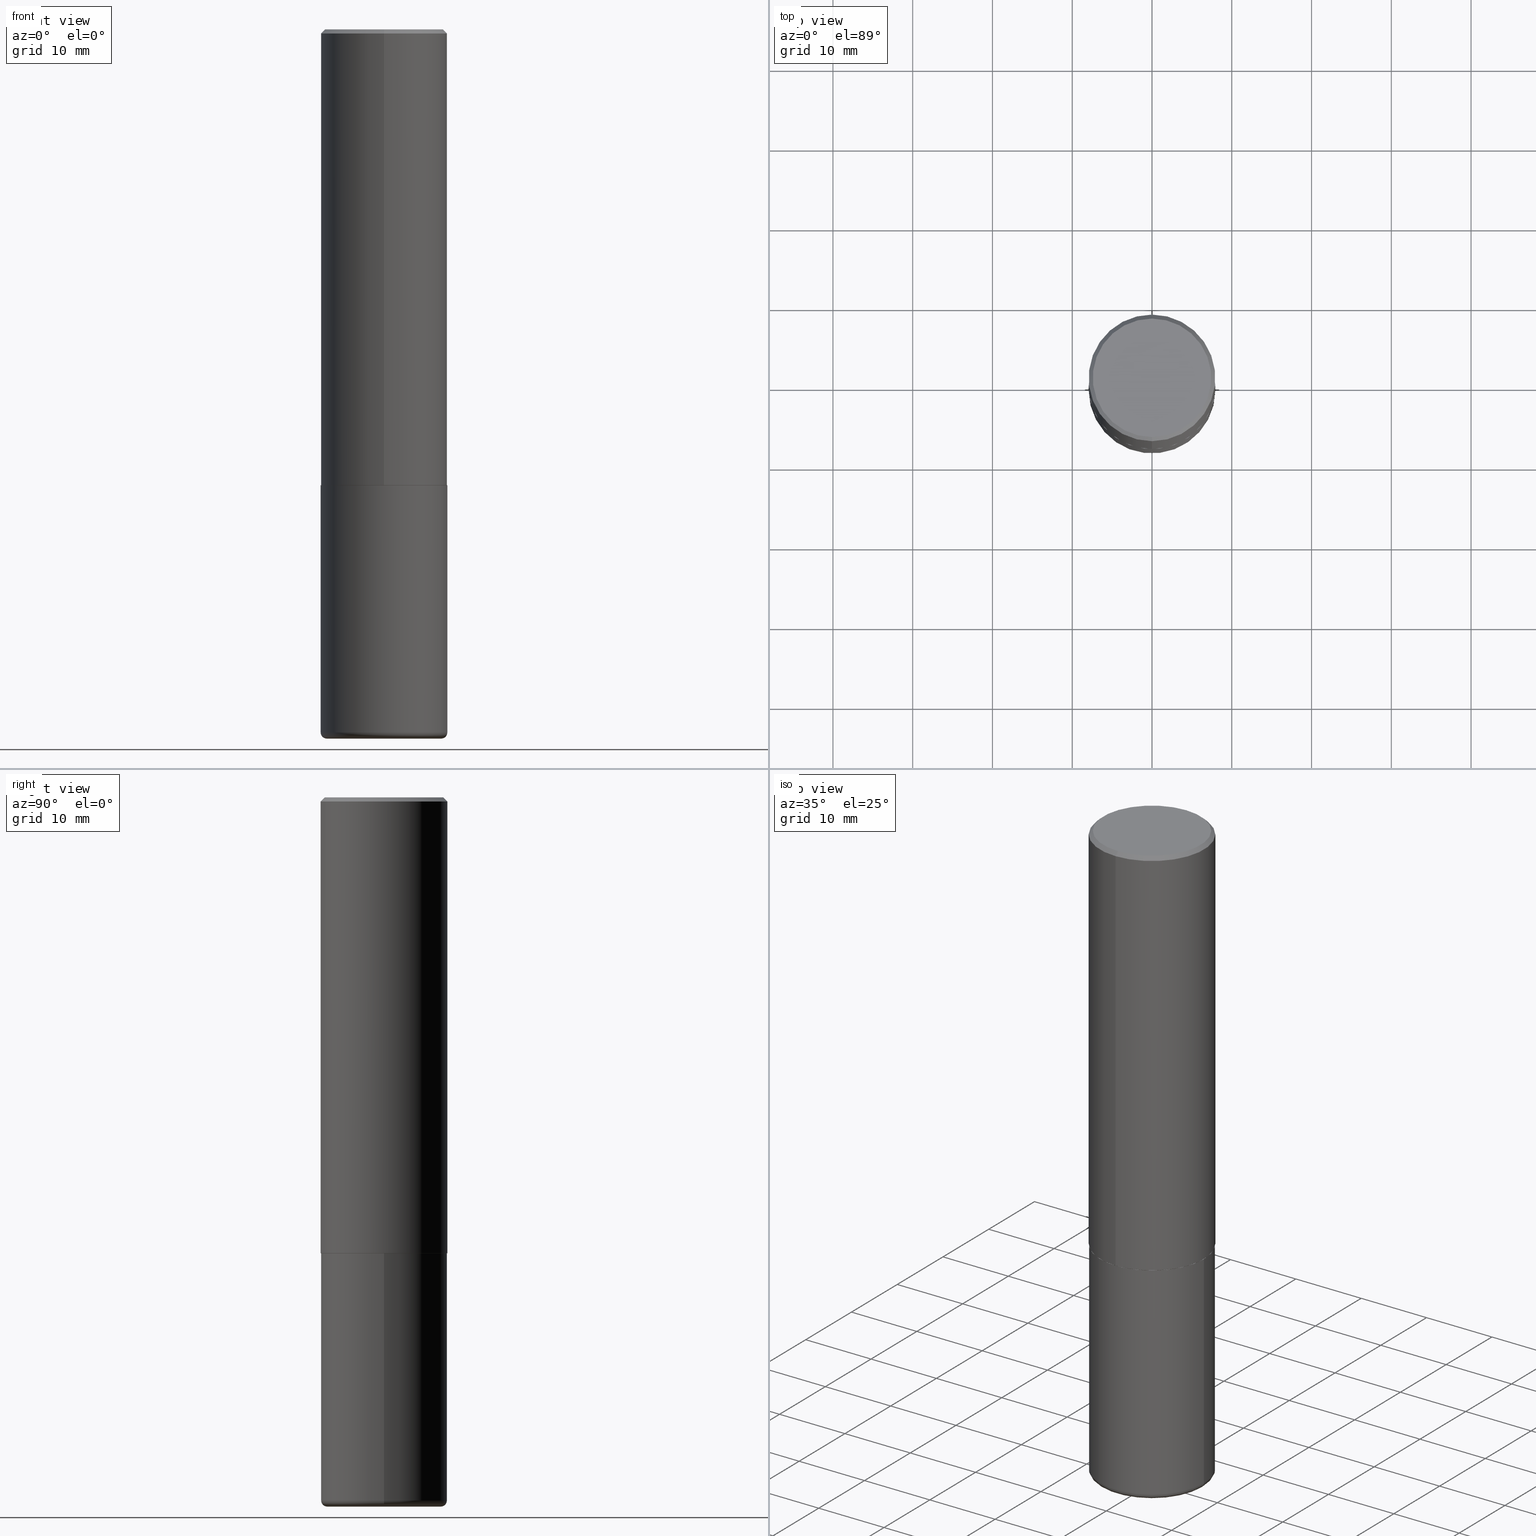
[diagram: canonical four-view strip — front | top / right | iso, engineering-drawing reading convention]
A machine part, canonical four-view strip (front | top / right | iso — engineering-drawing reading convention). The complete STEP part file that produces these views, byte-faithful:
ISO-10303-21;
HEADER;
FILE_DESCRIPTION (( 'STEP AP203' ),
    '1' );
FILE_NAME ('36383.STEP',
    '2024-03-01T16:18:49',
    ( '' ),
    ( '' ),
    'SwSTEP 2.0',
    'SolidWorks 2023',
    '' );
FILE_SCHEMA (( 'CONFIG_CONTROL_DESIGN' ));
ENDSEC;

DATA;
#1 = ADVANCED_FACE ( 'NONE', ( #114 ), #257, .F. ) ;
#2 = DIRECTION ( 'NONE',  ( -4.851104656540957175E-15, -0.7071067811865490160, -0.7071067811865460184 ) ) ;
#3 = DIRECTION ( 'NONE',  ( -2.445086907927291948E-29, 3.492028238884678069E-15, 1.000000000000000000 ) ) ;
#4 = PERSON_AND_ORGANIZATION_ROLE ( 'design_supplier' ) ;
#5 = CARTESIAN_POINT ( 'NONE',  ( 5.499000455928477404E-29, -7.853571509251639273E-15, -2.248999999999999222 ) ) ;
#6 = DIRECTION ( 'NONE',  ( 4.937700262164540942E-15, 0.7071067811865441310, -0.7071067811865509034 ) ) ;
#7 = CARTESIAN_POINT ( 'NONE',  ( -2.143905624303602036E-15, -0.3124999999999999445, -0.01999999999999897693 ) ) ;
#8 = AXIS2_PLACEMENT_3D ( 'NONE', #121, #312, #146 ) ;
#9 = APPROVAL_PERSON_ORGANIZATION ( #78, #305, #399 ) ;
#10 = CARTESIAN_POINT ( 'NONE',  ( 0.3125000000000000000, -1.003800884917403364E-14, -2.249999999999999556 ) ) ;
#11 = PERSON_AND_ORGANIZATION_ROLE ( 'creator' ) ;
#12 = ORIENTED_EDGE ( 'NONE', *, *, #45, .T. ) ;
#13 = COORDINATED_UNIVERSAL_TIME_OFFSET ( 5, 0, .BEHIND. ) ;
#14 = DATE_AND_TIME ( #173, #356 ) ;
#15 = VECTOR ( 'NONE', #159, 39.37007874015748143 ) ;
#16 = AXIS2_PLACEMENT_3D ( 'NONE', #397, #349, #69 ) ;
#17 = ORIENTED_EDGE ( 'NONE', *, *, #77, .T. ) ;
#18 = DIRECTION ( 'NONE',  ( -2.445468806185136877E-29, 3.491481338843145188E-15, 1.000000000000000000 ) ) ;
#19 = VERTEX_POINT ( 'NONE', #301 ) ;
#20 = CIRCLE ( 'NONE', #206, 0.3124999999999999445 ) ;
#21 = CYLINDRICAL_SURFACE ( 'NONE', #249, 0.3125000000000000555 ) ;
#22 = CARTESIAN_POINT ( 'NONE',  ( 2.112346210000094654E-15, 0.2924999999999998157, -9.743046542205149289E-16 ) ) ;
#23 = CC_DESIGN_PERSON_AND_ORGANIZATION_ASSIGNMENT ( #187, #364, ( #296 ) ) ;
#24 = EDGE_LOOP ( 'NONE', ( #262, #384, #61, #17 ) ) ;
#25 = CIRCLE ( 'NONE', #83, 0.2924999999999998157 ) ;
#26 =( NAMED_UNIT ( * ) SI_UNIT ( $, .STERADIAN. ) SOLID_ANGLE_UNIT ( ) );
#27 = ADVANCED_FACE ( 'NONE', ( #82 ), #302, .T. ) ;
#28 = ORIENTED_EDGE ( 'NONE', *, *, #280, .T. ) ;
#29 = COORDINATED_UNIVERSAL_TIME_OFFSET ( 5, 0, .BEHIND. ) ;
#30 = SECURITY_CLASSIFICATION_LEVEL ( 'unclassified' ) ;
#31 = CC_DESIGN_APPROVAL ( #326, ( #96 ) ) ;
#32 = ORIENTED_EDGE ( 'NONE', *, *, #373, .F. ) ;
#33 = CARTESIAN_POINT ( 'NONE',  ( -2.175192874099216718E-15, -0.3115000000000078817, -2.249999999999998224 ) ) ;
#34 = DIRECTION ( 'NONE',  ( 2.438088387897960049E-29, -3.491481338843145188E-15, -1.000000000000000000 ) ) ;
#35 = ORIENTED_EDGE ( 'NONE', *, *, #367, .T. ) ;
#36 = DIRECTION ( 'NONE',  ( -6.982962677686265922E-15, -1.000000000000000000, 3.496765431890253764E-15 ) ) ;
#37 = DATE_TIME_ROLE ( 'classification_date' ) ;
#38 = APPLICATION_PROTOCOL_DEFINITION ( 'international standard', 'config_control_design', 1994, #212 ) ;
#39 = EDGE_CURVE ( 'NONE', #19, #220, #133, .T. ) ;
#40 = LINE ( 'NONE', #371, #242 ) ;
#41 = CARTESIAN_POINT ( 'NONE',  ( 4.890173815854600958E-31, -6.984056477769379656E-17, -0.02000000000000006981 ) ) ;
#42 = ORIENTED_EDGE ( 'NONE', *, *, #144, .T. ) ;
#43 = COORDINATED_UNIVERSAL_TIME_OFFSET ( 5, 0, .BEHIND. ) ;
#44 = CARTESIAN_POINT ( 'NONE',  ( 5.501445542836404712E-29, -7.857063537490523880E-15, -2.249999999999999112 ) ) ;
#45 = EDGE_CURVE ( 'NONE', #64, #58, #108, .T. ) ;
#46 = PERSON_AND_ORGANIZATION ( #62, #191 ) ;
#47 = PLANE ( 'NONE',  #361 ) ;
#48 = CARTESIAN_POINT ( 'NONE',  ( 4.890173815854600958E-31, -6.984056477769379656E-17, -0.02000000000000006981 ) ) ;
#49 = PRODUCT_DEFINITION_SHAPE ( 'NONE', 'NONE',  #318 ) ;
#50 = ORIENTED_EDGE ( 'NONE', *, *, #98, .T. ) ;
#51 = AXIS2_PLACEMENT_3D ( 'NONE', #393, #34, #104 ) ;
#52 = PERSON_AND_ORGANIZATION ( #62, #191 ) ;
#53 = CARTESIAN_POINT ( 'NONE',  ( 8.485776757462424574E-29, -1.211544024578571439E-14, -3.469999999999999751 ) ) ;
#54 = DIRECTION ( 'NONE',  ( 6.982962677686265133E-15, 1.000000000000000000, -3.496765431890258103E-15 ) ) ;
#55 = DIRECTION ( 'NONE',  ( 1.000000000000000000, -6.982962677686270655E-15, 0.000000000000000000 ) ) ;
#56 = CONICAL_SURFACE ( 'NONE', #286, 0.3124999999999998890, 0.7853981633974469467 ) ;
#57 = CARTESIAN_POINT ( 'NONE',  ( 5.502304813916556222E-29, -7.855833012397075293E-15, -2.249999999999999556 ) ) ;
#58 = VERTEX_POINT ( 'NONE', #75 ) ;
#59 = DIRECTION ( 'NONE',  ( -6.982962677686266711E-15, -1.000000000000000000, 3.492028238884678463E-15 ) ) ;
#60 = EDGE_CURVE ( 'NONE', #64, #238, #281, .T. ) ;
#61 = ORIENTED_EDGE ( 'NONE', *, *, #175, .T. ) ;
#62 = PERSON ( 'UNSPECIFIED', 'UNSPECIFIED', 'UNSPECIFIED', ('UNSPECIFIED'), ('UNSPECIFIED'), ('UNSPECIFIED') ) ;
#63 = DIRECTION ( 'NONE',  ( -1.000000000000000000, 7.105427357601001859E-15, 0.000000000000000000 ) ) ;
#64 = VERTEX_POINT ( 'NONE', #79 ) ;
#65 = PERSON_AND_ORGANIZATION ( #62, #191 ) ;
#66 = CIRCLE ( 'NONE', #295, 0.3125000000000002776 ) ;
#67 = TOROIDAL_SURFACE ( 'NONE', #270, 0.2824999999999999734, 0.03000000000000022787 ) ;
#68 = ADVANCED_FACE ( 'NONE', ( #200 ), #56, .T. ) ;
#69 = DIRECTION ( 'NONE',  ( -1.000000000000000000, 6.982962677686265922E-15, -4.876176775795935793E-29 ) ) ;
#70 = SHAPE_DEFINITION_REPRESENTATION ( #49, #398 ) ;
#71 = CARTESIAN_POINT ( 'NONE',  ( 0.2824999999999999734, -1.419287164239738095E-14, -3.500000000000000444 ) ) ;
#72 = CARTESIAN_POINT ( 'NONE',  ( 5.501445542836404712E-29, -7.857063537490523880E-15, -2.249999999999999112 ) ) ;
#73 = CARTESIAN_POINT ( 'NONE',  ( 5.502304813916556222E-29, -7.855833012397075293E-15, -2.249999999999999556 ) ) ;
#74 = VECTOR ( 'NONE', #18, 39.37007874015748143 ) ;
#75 = CARTESIAN_POINT ( 'NONE',  ( 2.182175836776957558E-15, 0.3124999999999998335, -0.02000000000000116268 ) ) ;
#76 = DIRECTION ( 'NONE',  ( -2.445086907927291668E-29, 3.492028238884678463E-15, 1.000000000000000000 ) ) ;
#77 = EDGE_CURVE ( 'NONE', #58, #220, #111, .T. ) ;
#78 = PERSON_AND_ORGANIZATION ( #62, #191 ) ;
#79 = CARTESIAN_POINT ( 'NONE',  ( 2.220446049250341480E-15, 0.3124999999999924505, -2.249000000000000554 ) ) ;
#80 = DIRECTION ( 'NONE',  ( -6.982962677686265133E-15, -1.000000000000000000, 3.496765431890258103E-15 ) ) ;
#81 = CARTESIAN_POINT ( 'NONE',  ( -1.151968603680178869E-45, 1.645220413768359429E-31, 4.711360565325289381E-17 ) ) ;
#82 = FACE_OUTER_BOUND ( 'NONE', #99, .T. ) ;
#83 = AXIS2_PLACEMENT_3D ( 'NONE', #329, #76, #225 ) ;
#84 = CC_DESIGN_PERSON_AND_ORGANIZATION_ASSIGNMENT ( #258, #198, ( #96 ) ) ;
#85 = DIRECTION ( 'NONE',  ( -2.445468806185136877E-29, 3.491481338843145188E-15, 1.000000000000000000 ) ) ;
#86 = ORIENTED_EDGE ( 'NONE', *, *, #418, .T. ) ;
#87 = FACE_OUTER_BOUND ( 'NONE', #377, .T. ) ;
#88 = DIRECTION ( 'NONE',  ( -2.445468806185136597E-29, 3.491481338843145583E-15, 1.000000000000000000 ) ) ;
#89 = AXIS2_PLACEMENT_3D ( 'NONE', #5, #390, #232 ) ;
#90 = AXIS2_PLACEMENT_3D ( 'NONE', #41, #171, #369 ) ;
#91 = ORIENTED_EDGE ( 'NONE', *, *, #60, .F. ) ;
#92 = PERSON_AND_ORGANIZATION ( #62, #191 ) ;
#93 = CARTESIAN_POINT ( 'NONE',  ( -0.2824999999999999734, -1.005394782698206391E-14, -3.500000000000000444 ) ) ;
#94 = EDGE_CURVE ( 'NONE', #119, #410, #190, .T. ) ;
#95 = CIRCLE ( 'NONE', #378, 0.03000000000000022787 ) ;
#96 = SECURITY_CLASSIFICATION ( '', '', #30 ) ;
#97 = VERTEX_POINT ( 'NONE', #134 ) ;
#98 = EDGE_CURVE ( 'NONE', #410, #119, #20, .T. ) ;
#99 = EDGE_LOOP ( 'NONE', ( #339, #136, #303, #352 ) ) ;
#100 = DIRECTION ( 'NONE',  ( 1.000000000000000000, -6.982962677686280121E-15, 0.000000000000000000 ) ) ;
#101 = APPLICATION_PROTOCOL_DEFINITION ( 'international standard', 'config_control_design', 1994, #195 ) ;
#102 = AXIS2_PLACEMENT_3D ( 'NONE', #44, #174, #235 ) ;
#103 = APPROVAL_PERSON_ORGANIZATION ( #46, #326, #330 ) ;
#104 = DIRECTION ( 'NONE',  ( -1.000000000000000000, 6.982962677686265922E-15, -4.876176775795935793E-29 ) ) ;
#105 = ORIENTED_EDGE ( 'NONE', *, *, #182, .F. ) ;
#106 = DIRECTION ( 'NONE',  ( -4.937700262165728178E-15, -0.7071067811867141062, 0.7071067811863809283 ) ) ;
#107 = DATE_AND_TIME ( #386, #219 ) ;
#108 = LINE ( 'NONE', #227, #139 ) ;
#109 = DIRECTION ( 'NONE',  ( -2.445468806185136597E-29, 3.491481338843145583E-15, 1.000000000000000000 ) ) ;
#110 = EDGE_CURVE ( 'NONE', #97, #238, #395, .T. ) ;
#111 = CIRCLE ( 'NONE', #8, 0.3124999999999998890 ) ;
#112 = CARTESIAN_POINT ( 'NONE',  ( 4.890173815854600958E-31, -6.984056477769379656E-17, -0.02000000000000006981 ) ) ;
#113 = EDGE_CURVE ( 'NONE', #19, #252, #25, .T. ) ;
#114 = FACE_OUTER_BOUND ( 'NONE', #226, .T. ) ;
#115 = APPROVAL_DATE_TIME ( #178, #234 ) ;
#116 = AXIS2_PLACEMENT_3D ( 'NONE', #57, #124, #183 ) ;
#117 = ORIENTED_EDGE ( 'NONE', *, *, #135, .F. ) ;
#118 = CARTESIAN_POINT ( 'NONE',  ( 0.3125000000000000000, -2.182175836776958347E-15, 1.523805242436230075E-29 ) ) ;
#119 = VERTEX_POINT ( 'NONE', #229 ) ;
#120 = ADVANCED_FACE ( 'NONE', ( #164 ), #308, .T. ) ;
#121 = CARTESIAN_POINT ( 'NONE',  ( 4.890173815854600958E-31, -6.984056477769379656E-17, -0.02000000000000006981 ) ) ;
#122 = VECTOR ( 'NONE', #6, 39.37007874015748143 ) ;
#123 = AXIS2_PLACEMENT_3D ( 'NONE', #388, #109, #228 ) ;
#124 = DIRECTION ( 'NONE',  ( -2.445468806185136597E-29, 3.491481338843145583E-15, 1.000000000000000000 ) ) ;
#125 = LINE ( 'NONE', #118, #74 ) ;
#126 = EDGE_LOOP ( 'NONE', ( #294, #337, #244, #266 ) ) ;
#127 = DESIGN_CONTEXT ( 'detailed design', #212, 'design' ) ;
#128 = ADVANCED_FACE ( 'NONE', ( #359 ), #391, .T. ) ;
#129 = FACE_OUTER_BOUND ( 'NONE', #370, .T. ) ;
#130 = AXIS2_PLACEMENT_3D ( 'NONE', #194, #313, #63 ) ;
#131 = APPROVAL_DATE_TIME ( #396, #326 ) ;
#132 = AXIS2_PLACEMENT_3D ( 'NONE', #263, #88, #55 ) ;
#133 = LINE ( 'NONE', #7, #151 ) ;
#134 = CARTESIAN_POINT ( 'NONE',  ( -2.175192874099216718E-15, -0.3115000000000078817, -2.249999999999998224 ) ) ;
#135 = EDGE_CURVE ( 'NONE', #220, #58, #213, .T. ) ;
#136 = ORIENTED_EDGE ( 'NONE', *, *, #254, .T. ) ;
#137 = CARTESIAN_POINT ( 'NONE',  ( 0.000000000000000000, 0.000000000000000000, 0.000000000000000000 ) ) ;
#138 = DIRECTION ( 'NONE',  ( -6.982962677686266711E-15, -1.000000000000000000, 3.492028238884678463E-15 ) ) ;
#139 = VECTOR ( 'NONE', #360, 39.37007874015748143 ) ;
#140 = CIRCLE ( 'NONE', #376, 0.3125000000000000000 ) ;
#141 = CARTESIAN_POINT ( 'NONE',  ( 5.501445542836404712E-29, -7.857063537490523880E-15, -2.249999999999999112 ) ) ;
#142 = DIRECTION ( 'NONE',  ( -2.445468806185136597E-29, 3.491481338843145583E-15, 1.000000000000000000 ) ) ;
#143 = FACE_OUTER_BOUND ( 'NONE', #350, .T. ) ;
#144 = EDGE_CURVE ( 'NONE', #119, #274, #40, .T. ) ;
#145 = PERSON_AND_ORGANIZATION ( #62, #191 ) ;
#146 = DIRECTION ( 'NONE',  ( -6.982962677686265133E-15, -1.000000000000000000, 3.496765431890258103E-15 ) ) ;
#147 = ORIENTED_EDGE ( 'NONE', *, *, #182, .T. ) ;
#148 = DIRECTION ( 'NONE',  ( -2.445468806185136597E-29, 3.491481338843145583E-15, 1.000000000000000000 ) ) ;
#149 = ORIENTED_EDGE ( 'NONE', *, *, #60, .T. ) ;
#150 = DIRECTION ( 'NONE',  ( 2.445086907927291668E-29, -3.492028238884678069E-15, -1.000000000000000000 ) ) ;
#151 = VECTOR ( 'NONE', #2, 39.37007874015748143 ) ;
#152 = EDGE_CURVE ( 'NONE', #238, #220, #205, .T. ) ;
#153 = EDGE_LOOP ( 'NONE', ( #50, #42, #291, #207 ) ) ;
#154 = CARTESIAN_POINT ( 'NONE',  ( 2.042516583223231356E-15, 0.2924999999999998157, -9.978614570471413234E-16 ) ) ;
#155 = DIRECTION ( 'NONE',  ( -2.445468806185136597E-29, 3.491481338843145583E-15, 1.000000000000000000 ) ) ;
#156 =( GEOMETRIC_REPRESENTATION_CONTEXT ( 3 ) GLOBAL_UNCERTAINTY_ASSIGNED_CONTEXT ( ( #354 ) ) GLOBAL_UNIT_ASSIGNED_CONTEXT ( ( #163, #285, #26 ) ) REPRESENTATION_CONTEXT ( 'NONE', 'WORKASPACE' ) );
#157 = CC_DESIGN_PERSON_AND_ORGANIZATION_ASSIGNMENT ( #65, #11, ( #167 ) ) ;
#158 = CARTESIAN_POINT ( 'NONE',  ( 8.559140821647978089E-29, -1.222018468595101092E-14, -3.500000000000000444 ) ) ;
#159 = DIRECTION ( 'NONE',  ( 5.024295867789263036E-15, 0.7071067811867189912, 0.7071067811863760433 ) ) ;
#160 = AXIS2_PLACEMENT_3D ( 'NONE', #201, #142, #334 ) ;
#161 = DIRECTION ( 'NONE',  ( -2.445086907927291668E-29, 3.492028238884678463E-15, 1.000000000000000000 ) ) ;
#162 = LOCAL_TIME ( 11, 18, 49.00000000000000000, #29 ) ;
#163 =( CONVERSION_BASED_UNIT ( 'INCH', #253 ) LENGTH_UNIT ( ) NAMED_UNIT ( #368 ) );
#164 = FACE_OUTER_BOUND ( 'NONE', #332, .T. ) ;
#165 = CARTESIAN_POINT ( 'NONE',  ( 2.216893335571567797E-15, 0.3114999999999921720, -2.250000000000000444 ) ) ;
#166 = CIRCLE ( 'NONE', #116, 0.3125000000000000000 ) ;
#167 = PRODUCT_DEFINITION_FORMATION_WITH_SPECIFIED_SOURCE ( 'ANY', '', #296, .NOT_KNOWN. ) ;
#168 = CARTESIAN_POINT ( 'NONE',  ( -2.182175836776958741E-15, -0.3125000000000000555, 1.091258824651462242E-15 ) ) ;
#169 = MANIFOLD_SOLID_BREP ( 'Body-Move/Copy2[1]', #214 ) ;
#170 = EDGE_CURVE ( 'NONE', #238, #64, #66, .T. ) ;
#171 = DIRECTION ( 'NONE',  ( 2.445086907927291668E-29, -3.492028238884678463E-15, -1.000000000000000000 ) ) ;
#172 = CIRCLE ( 'NONE', #411, 0.2824999999999999734 ) ;
#173 = CALENDAR_DATE ( 2024, 1, 3 ) ;
#174 = DIRECTION ( 'NONE',  ( -2.445086907927291668E-29, 3.492028238884678463E-15, 1.000000000000000000 ) ) ;
#175 = EDGE_CURVE ( 'NONE', #252, #58, #389, .T. ) ;
#176 = CONICAL_SURFACE ( 'NONE', #90, 0.3124999999999998890, 0.7853981633974469467 ) ;
#177 = MANIFOLD_SOLID_BREP ( 'Body-Move/Copy2[2]', #230 ) ;
#178 = DATE_AND_TIME ( #402, #282 ) ;
#179 = DIRECTION ( 'NONE',  ( -2.445468806185136597E-29, 3.491481338843145583E-15, 1.000000000000000000 ) ) ;
#180 = CYLINDRICAL_SURFACE ( 'NONE', #372, 0.3125000000000000000 ) ;
#181 = PERSON_AND_ORGANIZATION_ROLE ( 'creator' ) ;
#182 = EDGE_CURVE ( 'NONE', #321, #246, #347, .T. ) ;
#183 = DIRECTION ( 'NONE',  ( 1.000000000000000000, -6.982962677686265133E-15, 0.000000000000000000 ) ) ;
#184 = DIRECTION ( 'NONE',  ( -2.445086907927291668E-29, 3.492028238884678463E-15, 1.000000000000000000 ) ) ;
#185 = DIRECTION ( 'NONE',  ( -6.982962677686265922E-15, -1.000000000000000000, 3.507991003100177457E-15 ) ) ;
#186 = CARTESIAN_POINT ( 'NONE',  ( -0.3125000000000000000, -7.765190579841083341E-15, -2.249999999999999556 ) ) ;
#187 = PERSON_AND_ORGANIZATION ( #62, #191 ) ;
#188 = ORIENTED_EDGE ( 'NONE', *, *, #275, .F. ) ;
#189 = ADVANCED_FACE ( 'NONE', ( #245 ), #180, .T. ) ;
#190 = CIRCLE ( 'NONE', #160, 0.3124999999999999445 ) ;
#191 = ORGANIZATION ( 'UNSPECIFIED', 'UNSPECIFIED', '' ) ;
#192 = ORIENTED_EDGE ( 'NONE', *, *, #254, .F. ) ;
#193 = DIRECTION ( 'NONE',  ( -6.982962677686266711E-15, -1.000000000000000000, 3.491481338843145583E-15 ) ) ;
#194 = CARTESIAN_POINT ( 'NONE',  ( -0.2824999999999999734, -1.010815701726343156E-14, -3.469999999999999751 ) ) ;
#195 = APPLICATION_CONTEXT ( 'configuration controlled 3d designs of mechanical parts and assemblies' ) ;
#196 = DIRECTION ( 'NONE',  ( -2.445086907927291668E-29, 3.492028238884678463E-15, 1.000000000000000000 ) ) ;
#197 = CIRCLE ( 'NONE', #264, 0.3114999999999999991 ) ;
#198 = PERSON_AND_ORGANIZATION_ROLE ( 'classification_officer' ) ;
#199 = APPROVAL_STATUS ( 'not_yet_approved' ) ;
#200 = FACE_OUTER_BOUND ( 'NONE', #24, .T. ) ;
#201 = CARTESIAN_POINT ( 'NONE',  ( 8.485776757462424574E-29, -1.211544024578571439E-14, -3.469999999999999751 ) ) ;
#202 = FACE_OUTER_BOUND ( 'NONE', #126, .T. ) ;
#203 = ORIENTED_EDGE ( 'NONE', *, *, #210, .F. ) ;
#204 = ORIENTED_EDGE ( 'NONE', *, *, #77, .F. ) ;
#205 = LINE ( 'NONE', #168, #269 ) ;
#206 = AXIS2_PLACEMENT_3D ( 'NONE', #365, #385, #324 ) ;
#207 = ORIENTED_EDGE ( 'NONE', *, *, #418, .F. ) ;
#208 = CARTESIAN_POINT ( 'NONE',  ( 5.499000455928477404E-29, -7.853571509251639273E-15, -2.248999999999999222 ) ) ;
#209 = DIRECTION ( 'NONE',  ( 1.000000000000000000, -6.982962677686265133E-15, 0.000000000000000000 ) ) ;
#210 = EDGE_CURVE ( 'NONE', #246, #321, #172, .T. ) ;
#211 = ORIENTED_EDGE ( 'NONE', *, *, #152, .F. ) ;
#212 = APPLICATION_CONTEXT ( 'configuration controlled 3d designs of mechanical parts and assemblies' ) ;
#213 = CIRCLE ( 'NONE', #375, 0.3124999999999998890 ) ;
#214 = CLOSED_SHELL ( 'NONE', ( #189, #394, #355, #358, #120, #284 ) ) ;
#215 = CC_DESIGN_SECURITY_CLASSIFICATION ( #96, ( #167 ) ) ;
#216 = EDGE_CURVE ( 'NONE', #341, #274, #166, .T. ) ;
#217 = CALENDAR_DATE ( 2024, 1, 3 ) ;
#218 = CARTESIAN_POINT ( 'NONE',  ( 0.000000000000000000, 0.000000000000000000, 0.000000000000000000 ) ) ;
#219 = LOCAL_TIME ( 11, 18, 49.00000000000000000, #328 ) ;
#220 = VERTEX_POINT ( 'NONE', #344 ) ;
#221 = CC_DESIGN_DATE_AND_TIME_ASSIGNMENT ( #107, #37, ( #96 ) ) ;
#222 = CIRCLE ( 'NONE', #403, 0.3114999999999999991 ) ;
#223 = ORIENTED_EDGE ( 'NONE', *, *, #45, .F. ) ;
#224 = CC_DESIGN_PERSON_AND_ORGANIZATION_ASSIGNMENT ( #145, #4, ( #167 ) ) ;
#225 = DIRECTION ( 'NONE',  ( -6.982962677686265133E-15, -1.000000000000000000, 3.492028238884678858E-15 ) ) ;
#226 = EDGE_LOOP ( 'NONE', ( #240, #188 ) ) ;
#227 = CARTESIAN_POINT ( 'NONE',  ( 2.220446049250313081E-15, 0.3125000000000000555, -1.091258824651462242E-15 ) ) ;
#228 = DIRECTION ( 'NONE',  ( 1.000000000000000000, -6.982962677686266711E-15, 4.876176775795936353E-29 ) ) ;
#229 = CARTESIAN_POINT ( 'NONE',  ( -0.3125000000000000555, -9.894994196535401314E-15, -3.469999999999999751 ) ) ;
#230 = CLOSED_SHELL ( 'NONE', ( #27, #251, #333, #68, #292, #128, #1, #382 ) ) ;
#231 = CC_DESIGN_APPROVAL ( #305, ( #318 ) ) ;
#232 = DIRECTION ( 'NONE',  ( -6.982962677686265922E-15, -1.000000000000000000, 3.496765431890253764E-15 ) ) ;
#233 = FACE_OUTER_BOUND ( 'NONE', #405, .T. ) ;
#234 = APPROVAL ( #342, 'UNSPECIFIED' ) ;
#235 = DIRECTION ( 'NONE',  ( -6.982962677686265922E-15, -1.000000000000000000, 3.507991003100177457E-15 ) ) ;
#236 = DIRECTION ( 'NONE',  ( -2.445086907927291668E-29, 3.492028238884678463E-15, 1.000000000000000000 ) ) ;
#237 = DIRECTION ( 'NONE',  ( -6.982962677686265922E-15, -1.000000000000000000, 3.492028238884678069E-15 ) ) ;
#238 = VERTEX_POINT ( 'NONE', #278 ) ;
#239 = EDGE_LOOP ( 'NONE', ( #387, #12, #117, #211 ) ) ;
#240 = ORIENTED_EDGE ( 'NONE', *, *, #241, .F. ) ;
#241 = EDGE_CURVE ( 'NONE', #97, #338, #222, .T. ) ;
#242 = VECTOR ( 'NONE', #85, 39.37007874015748143 ) ;
#243 = APPROVAL_PERSON_ORGANIZATION ( #52, #234, #299 ) ;
#244 = ORIENTED_EDGE ( 'NONE', *, *, #135, .T. ) ;
#245 = FACE_OUTER_BOUND ( 'NONE', #153, .T. ) ;
#246 = VERTEX_POINT ( 'NONE', #93 ) ;
#247 = DIRECTION ( 'NONE',  ( -6.982962677686265922E-15, -1.000000000000000000, 3.507991003100177457E-15 ) ) ;
#248 = EDGE_LOOP ( 'NONE', ( #105, #203 ) ) ;
#249 = AXIS2_PLACEMENT_3D ( 'NONE', #383, #351, #59 ) ;
#250 = AXIS2_PLACEMENT_3D ( 'NONE', #310, #279, #314 ) ;
#251 = ADVANCED_FACE ( 'NONE', ( #309 ), #21, .T. ) ;
#252 = VERTEX_POINT ( 'NONE', #22 ) ;
#253 = LENGTH_MEASURE_WITH_UNIT ( LENGTH_MEASURE( 0.02539999999999999897 ), #256 );
#254 = EDGE_CURVE ( 'NONE', #338, #64, #416, .T. ) ;
#255 = VECTOR ( 'NONE', #106, 39.37007874015748143 ) ;
#256 =( LENGTH_UNIT ( ) NAMED_UNIT ( * ) SI_UNIT ( $, .METRE. ) );
#257 = PLANE ( 'NONE',  #335 ) ;
#258 = PERSON_AND_ORGANIZATION ( #62, #191 ) ;
#259 = ORIENTED_EDGE ( 'NONE', *, *, #110, .T. ) ;
#260 = DIRECTION ( 'NONE',  ( -2.445086907927291668E-29, 3.492028238884678463E-15, 1.000000000000000000 ) ) ;
#261 = DIRECTION ( 'NONE',  ( -2.445086907927291668E-29, 3.492028238884678463E-15, 1.000000000000000000 ) ) ;
#262 = ORIENTED_EDGE ( 'NONE', *, *, #39, .F. ) ;
#263 = CARTESIAN_POINT ( 'NONE',  ( 8.559140821647978089E-29, -1.222018468595101092E-14, -3.500000000000000444 ) ) ;
#264 = AXIS2_PLACEMENT_3D ( 'NONE', #379, #161, #185 ) ;
#265 = PLANE ( 'NONE',  #16 ) ;
#266 = ORIENTED_EDGE ( 'NONE', *, *, #175, .F. ) ;
#267 = EDGE_CURVE ( 'NONE', #321, #410, #95, .T. ) ;
#268 = DIRECTION ( 'NONE',  ( -2.445086907927291668E-29, 3.492028238884678463E-15, 1.000000000000000000 ) ) ;
#269 = VECTOR ( 'NONE', #3, 39.37007874015748143 ) ;
#270 = AXIS2_PLACEMENT_3D ( 'NONE', #53, #179, #304 ) ;
#271 = APPROVAL_DATE_TIME ( #14, #305 ) ;
#272 = DIRECTION ( 'NONE',  ( 2.445086907927291668E-29, -3.492028238884678463E-15, -1.000000000000000000 ) ) ;
#273 = EDGE_LOOP ( 'NONE', ( #35, #408 ) ) ;
#274 = VERTEX_POINT ( 'NONE', #186 ) ;
#275 = EDGE_CURVE ( 'NONE', #338, #97, #197, .T. ) ;
#276 = ORIENTED_EDGE ( 'NONE', *, *, #373, .T. ) ;
#277 = DIRECTION ( 'NONE',  ( 1.000000000000000000, -6.982962677686266711E-15, 4.876176775795936353E-29 ) ) ;
#278 = CARTESIAN_POINT ( 'NONE',  ( -2.182175836776905099E-15, -0.3125000000000081601, -2.248999999999998334 ) ) ;
#279 = DIRECTION ( 'NONE',  ( 0.000000000000000000, 0.000000000000000000, 1.000000000000000000 ) ) ;
#280 = EDGE_CURVE ( 'NONE', #246, #119, #348, .T. ) ;
#281 = CIRCLE ( 'NONE', #89, 0.3125000000000002776 ) ;
#282 = LOCAL_TIME ( 11, 18, 49.00000000000000000, #13 ) ;
#283 = ORIENTED_EDGE ( 'NONE', *, *, #216, .T. ) ;
#284 = ADVANCED_FACE ( 'NONE', ( #315 ), #325, .T. ) ;
#285 =( NAMED_UNIT ( * ) PLANE_ANGLE_UNIT ( ) SI_UNIT ( $, .RADIAN. ) );
#286 = AXIS2_PLACEMENT_3D ( 'NONE', #48, #272, #54 ) ;
#287 = DIRECTION ( 'NONE',  ( -6.982962677686265133E-15, -1.000000000000000000, 3.492028238884678858E-15 ) ) ;
#288 = ORIENTED_EDGE ( 'NONE', *, *, #144, .F. ) ;
#289 = DIRECTION ( 'NONE',  ( 1.000000000000000000, -6.982962677686264344E-15, 4.883557194083112340E-29 ) ) ;
#290 = APPROVAL_STATUS ( 'not_yet_approved' ) ;
#291 = ORIENTED_EDGE ( 'NONE', *, *, #216, .F. ) ;
#292 = ADVANCED_FACE ( 'NONE', ( #233 ), #331, .T. ) ;
#293 = CARTESIAN_POINT ( 'NONE',  ( 2.182175836776957558E-15, 0.3124999999999998335, -0.02000000000000116268 ) ) ;
#294 = ORIENTED_EDGE ( 'NONE', *, *, #113, .F. ) ;
#295 = AXIS2_PLACEMENT_3D ( 'NONE', #208, #260, #36 ) ;
#296 = PRODUCT ( '36383', '36383', '', ( #380 ) ) ;
#297 = DIRECTION ( 'NONE',  ( -6.982962677686265922E-15, -1.000000000000000000, 3.507991003100177457E-15 ) ) ;
#298 = CC_DESIGN_DATE_AND_TIME_ASSIGNMENT ( #345, #374, ( #318 ) ) ;
#299 = APPROVAL_ROLE ( '' ) ;
#300 = CYLINDRICAL_SURFACE ( 'NONE', #123, 0.3125000000000000000 ) ;
#301 = CARTESIAN_POINT ( 'NONE',  ( -2.075300644325886704E-15, -0.2924999999999998157, 1.068531865527020507E-15 ) ) ;
#302 = CONICAL_SURFACE ( 'NONE', #102, 0.3114999999999999991, 0.7853981633976873100 ) ;
#303 = ORIENTED_EDGE ( 'NONE', *, *, #170, .F. ) ;
#304 = DIRECTION ( 'NONE',  ( 1.000000000000000000, -6.982962677686264344E-15, 4.883557194083112340E-29 ) ) ;
#305 = APPROVAL ( #199, 'UNSPECIFIED' ) ;
#306 = ORIENTED_EDGE ( 'NONE', *, *, #275, .T. ) ;
#307 = COORDINATED_UNIVERSAL_TIME_OFFSET ( 5, 0, .BEHIND. ) ;
#308 = TOROIDAL_SURFACE ( 'NONE', #392, 0.2824999999999999734, 0.03000000000000022787 ) ;
#309 = FACE_OUTER_BOUND ( 'NONE', #239, .T. ) ;
#310 = CARTESIAN_POINT ( 'NONE',  ( 0.000000000000000000, 0.000000000000000000, 0.000000000000000000 ) ) ;
#311 = PRODUCT_RELATED_PRODUCT_CATEGORY ( 'detail', '', ( #296 ) ) ;
#312 = DIRECTION ( 'NONE',  ( -2.445086907927291668E-29, 3.492028238884678463E-15, 1.000000000000000000 ) ) ;
#313 = DIRECTION ( 'NONE',  ( 7.105427357601001859E-15, 1.000000000000000000, -3.491481338843145583E-15 ) ) ;
#314 = DIRECTION ( 'NONE',  ( 1.000000000000000000, 0.000000000000000000, 0.000000000000000000 ) ) ;
#315 = FACE_OUTER_BOUND ( 'NONE', #248, .T. ) ;
#316 = AXIS2_PLACEMENT_3D ( 'NONE', #72, #196, #297 ) ;
#317 = CIRCLE ( 'NONE', #404, 0.2924999999999998157 ) ;
#318 = PRODUCT_DEFINITION ( 'UNKNOWN', '', #167, #127 ) ;
#319 = ORIENTED_EDGE ( 'NONE', *, *, #94, .T. ) ;
#320 = CARTESIAN_POINT ( 'NONE',  ( 0.2824999999999999734, -1.408812720223208600E-14, -3.469999999999999751 ) ) ;
#321 = VERTEX_POINT ( 'NONE', #71 ) ;
#322 = ORIENTED_EDGE ( 'NONE', *, *, #98, .F. ) ;
#323 = LOCAL_TIME ( 11, 18, 49.00000000000000000, #307 ) ;
#324 = DIRECTION ( 'NONE',  ( 1.000000000000000000, -6.982962677686264344E-15, 0.000000000000000000 ) ) ;
#325 = PLANE ( 'NONE',  #51 ) ;
#326 = APPROVAL ( #290, 'UNSPECIFIED' ) ;
#327 = DIRECTION ( 'NONE',  ( -2.445086907927291668E-29, 3.492028238884678069E-15, 1.000000000000000000 ) ) ;
#328 = COORDINATED_UNIVERSAL_TIME_OFFSET ( 5, 0, .BEHIND. ) ;
#329 = CARTESIAN_POINT ( 'NONE',  ( -1.151968603680178869E-45, 1.645220413768359429E-31, 4.711360565325289381E-17 ) ) ;
#330 = APPROVAL_ROLE ( '' ) ;
#331 = CYLINDRICAL_SURFACE ( 'NONE', #336, 0.3125000000000000555 ) ;
#332 = EDGE_LOOP ( 'NONE', ( #415, #353, #401, #417 ) ) ;
#333 = ADVANCED_FACE ( 'NONE', ( #202 ), #176, .T. ) ;
#334 = DIRECTION ( 'NONE',  ( 1.000000000000000000, -6.982962677686264344E-15, 0.000000000000000000 ) ) ;
#335 = AXIS2_PLACEMENT_3D ( 'NONE', #141, #327, #237 ) ;
#336 = AXIS2_PLACEMENT_3D ( 'NONE', #137, #261, #138 ) ;
#337 = ORIENTED_EDGE ( 'NONE', *, *, #39, .T. ) ;
#338 = VERTEX_POINT ( 'NONE', #165 ) ;
#339 = ORIENTED_EDGE ( 'NONE', *, *, #241, .T. ) ;
#340 = FACE_OUTER_BOUND ( 'NONE', #273, .T. ) ;
#341 = VERTEX_POINT ( 'NONE', #10 ) ;
#342 = APPROVAL_STATUS ( 'not_yet_approved' ) ;
#343 = CC_DESIGN_APPROVAL ( #234, ( #167 ) ) ;
#344 = CARTESIAN_POINT ( 'NONE',  ( -2.143905624303602036E-15, -0.3124999999999999445, -0.01999999999999897693 ) ) ;
#345 = DATE_AND_TIME ( #217, #323 ) ;
#346 = DIRECTION ( 'NONE',  ( -2.445468806185136597E-29, 3.491481338843145583E-15, 1.000000000000000000 ) ) ;
#347 = CIRCLE ( 'NONE', #132, 0.2824999999999999734 ) ;
#348 = CIRCLE ( 'NONE', #130, 0.03000000000000022787 ) ;
#349 = DIRECTION ( 'NONE',  ( 2.438088387897960049E-29, -3.491481338843145188E-15, -1.000000000000000000 ) ) ;
#350 = EDGE_LOOP ( 'NONE', ( #283, #276 ) ) ;
#351 = DIRECTION ( 'NONE',  ( -2.445086907927291668E-29, 3.492028238884678463E-15, 1.000000000000000000 ) ) ;
#352 = ORIENTED_EDGE ( 'NONE', *, *, #110, .F. ) ;
#353 = ORIENTED_EDGE ( 'NONE', *, *, #210, .T. ) ;
#354 = UNCERTAINTY_MEASURE_WITH_UNIT (LENGTH_MEASURE( 1.000000000000000082E-05 ), #163, 'distance_accuracy_value', 'NONE');
#355 = ADVANCED_FACE ( 'NONE', ( #143 ), #265, .F. ) ;
#356 = LOCAL_TIME ( 11, 18, 49.00000000000000000, #43 ) ;
#357 = EDGE_LOOP ( 'NONE', ( #192, #306, #259, #91 ) ) ;
#358 = ADVANCED_FACE ( 'NONE', ( #129 ), #300, .T. ) ;
#359 = FACE_OUTER_BOUND ( 'NONE', #357, .T. ) ;
#360 = DIRECTION ( 'NONE',  ( -2.445086907927291948E-29, 3.492028238884678069E-15, 1.000000000000000000 ) ) ;
#361 = AXIS2_PLACEMENT_3D ( 'NONE', #154, #150, #406 ) ;
#362 = ORIENTED_EDGE ( 'NONE', *, *, #267, .F. ) ;
#363 = CARTESIAN_POINT ( 'NONE',  ( 8.485776757462424574E-29, -1.211544024578571439E-14, -3.469999999999999751 ) ) ;
#364 = PERSON_AND_ORGANIZATION_ROLE ( 'design_owner' ) ;
#365 = CARTESIAN_POINT ( 'NONE',  ( 8.485776757462424574E-29, -1.211544024578571439E-14, -3.469999999999999751 ) ) ;
#366 = CALENDAR_DATE ( 2024, 1, 3 ) ;
#367 = EDGE_CURVE ( 'NONE', #252, #19, #317, .T. ) ;
#368 = DIMENSIONAL_EXPONENTS ( 1.000000000000000000, 0.000000000000000000, 0.000000000000000000, 0.000000000000000000, 0.000000000000000000, 0.000000000000000000, 0.000000000000000000 ) ;
#369 = DIRECTION ( 'NONE',  ( 6.982962677686265133E-15, 1.000000000000000000, -3.496765431890258103E-15 ) ) ;
#370 = EDGE_LOOP ( 'NONE', ( #288, #319, #86, #32 ) ) ;
#371 = CARTESIAN_POINT ( 'NONE',  ( -0.3125000000000000000, 2.220446049250313081E-15, -1.537167215704658232E-29 ) ) ;
#372 = AXIS2_PLACEMENT_3D ( 'NONE', #218, #155, #277 ) ;
#373 = EDGE_CURVE ( 'NONE', #274, #341, #140, .T. ) ;
#374 = DATE_TIME_ROLE ( 'creation_date' ) ;
#375 = AXIS2_PLACEMENT_3D ( 'NONE', #112, #236, #80 ) ;
#376 = AXIS2_PLACEMENT_3D ( 'NONE', #73, #413, #209 ) ;
#377 = EDGE_LOOP ( 'NONE', ( #147, #28, #322, #362 ) ) ;
#378 = AXIS2_PLACEMENT_3D ( 'NONE', #320, #193, #100 ) ;
#379 = CARTESIAN_POINT ( 'NONE',  ( 5.501445542836404712E-29, -7.857063537490523880E-15, -2.249999999999999112 ) ) ;
#380 = MECHANICAL_CONTEXT ( 'NONE', #195, 'mechanical' ) ;
#381 = CARTESIAN_POINT ( 'NONE',  ( 2.213340621892766504E-15, 0.3114999999999921720, -2.250000000000000444 ) ) ;
#382 = ADVANCED_FACE ( 'NONE', ( #340 ), #47, .F. ) ;
#383 = CARTESIAN_POINT ( 'NONE',  ( 0.000000000000000000, 0.000000000000000000, 0.000000000000000000 ) ) ;
#384 = ORIENTED_EDGE ( 'NONE', *, *, #367, .F. ) ;
#385 = DIRECTION ( 'NONE',  ( -2.445468806185136597E-29, 3.491481338843145583E-15, 1.000000000000000000 ) ) ;
#386 = CALENDAR_DATE ( 2024, 1, 3 ) ;
#387 = ORIENTED_EDGE ( 'NONE', *, *, #170, .T. ) ;
#388 = CARTESIAN_POINT ( 'NONE',  ( 0.000000000000000000, 0.000000000000000000, 0.000000000000000000 ) ) ;
#389 = LINE ( 'NONE', #293, #122 ) ;
#390 = DIRECTION ( 'NONE',  ( -2.445086907927291668E-29, 3.492028238884678463E-15, 1.000000000000000000 ) ) ;
#391 = CONICAL_SURFACE ( 'NONE', #316, 0.3114999999999999991, 0.7853981633976873100 ) ;
#392 = AXIS2_PLACEMENT_3D ( 'NONE', #363, #148, #289 ) ;
#393 = CARTESIAN_POINT ( 'NONE',  ( 3.832247084795318978E-29, -1.898936555520759464E-14, -3.500000000000000444 ) ) ;
#394 = ADVANCED_FACE ( 'NONE', ( #87 ), #67, .T. ) ;
#395 = LINE ( 'NONE', #33, #255 ) ;
#396 = DATE_AND_TIME ( #366, #162 ) ;
#397 = CARTESIAN_POINT ( 'NONE',  ( 5.502304813916556222E-29, -7.855833012397075293E-15, -2.249999999999999556 ) ) ;
#398 = ADVANCED_BREP_SHAPE_REPRESENTATION ( '36383', ( #169, #177, #250 ), #156 ) ;
#399 = APPROVAL_ROLE ( '' ) ;
#400 = ORIENTED_EDGE ( 'NONE', *, *, #152, .T. ) ;
#401 = ORIENTED_EDGE ( 'NONE', *, *, #267, .T. ) ;
#402 = CALENDAR_DATE ( 2024, 1, 3 ) ;
#403 = AXIS2_PLACEMENT_3D ( 'NONE', #414, #184, #247 ) ;
#404 = AXIS2_PLACEMENT_3D ( 'NONE', #81, #268, #287 ) ;
#405 = EDGE_LOOP ( 'NONE', ( #223, #149, #400, #204 ) ) ;
#406 = DIRECTION ( 'NONE',  ( 6.982962677686265922E-15, 1.000000000000000000, -3.492028238884678069E-15 ) ) ;
#407 = CC_DESIGN_PERSON_AND_ORGANIZATION_ASSIGNMENT ( #92, #181, ( #318 ) ) ;
#408 = ORIENTED_EDGE ( 'NONE', *, *, #113, .T. ) ;
#409 = CARTESIAN_POINT ( 'NONE',  ( 0.3125000000000000555, -1.429761608256267432E-14, -3.469999999999999751 ) ) ;
#410 = VERTEX_POINT ( 'NONE', #409 ) ;
#411 = AXIS2_PLACEMENT_3D ( 'NONE', #158, #346, #412 ) ;
#412 = DIRECTION ( 'NONE',  ( 1.000000000000000000, -6.982962677686270655E-15, 0.000000000000000000 ) ) ;
#413 = DIRECTION ( 'NONE',  ( -2.445468806185136597E-29, 3.491481338843145583E-15, 1.000000000000000000 ) ) ;
#414 = CARTESIAN_POINT ( 'NONE',  ( 5.501445542836404712E-29, -7.857063537490523880E-15, -2.249999999999999112 ) ) ;
#415 = ORIENTED_EDGE ( 'NONE', *, *, #280, .F. ) ;
#416 = LINE ( 'NONE', #381, #15 ) ;
#417 = ORIENTED_EDGE ( 'NONE', *, *, #94, .F. ) ;
#418 = EDGE_CURVE ( 'NONE', #410, #341, #125, .T. ) ;
ENDSEC;
END-ISO-10303-21;
